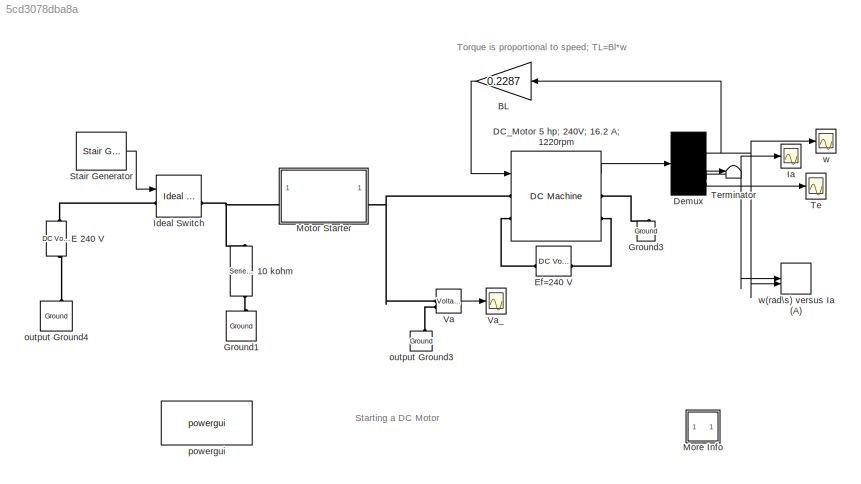
MODEL slx_5cd3078dba8a
KIND model
CONFIG AbsTol = auto
CONFIG EnableMultiTasking = off
CONFIG FixedStep = auto
CONFIG MaxStep = auto
CONFIG MinStep = auto
CONFIG RelTol = 1e-4
CONFIG SampleTimeConstraint = Unconstrained
CONFIG SolverName = ode23tb
CONFIG StartTime = 0.0
CONFIG StopTime = 10
BLOCK [Reference] 10 kohm  REF=spsSeriesRLCBranchLib/Series RLC Branch
  AttributesFormatString = \n
  NameLocation = left
  SourceBlock = spsSeriesRLCBranchLib/Series RLC Branch
  SourceType = Series RLC Branch
BLOCK [Gain] BL
  Gain = 0.2287
  NameLocation = top
  OutDataTypeStr = Inherit: Same as input
  ParamDataTypeStr = Inherit: Same as input
  SaturateOnIntegerOverflow = on
BLOCK [Reference] DC_Motor 5 hp;  240V;  16.2 A;  1220rpm  REF=spsDCMachineLib/DC Machine
  AttributesFormatString = \n
  NameLocation = top
  SourceBlock = spsDCMachineLib/DC Machine
  SourceType = DC machine
BLOCK [Demux] Demux
  DisplayOption = none
BLOCK [Reference] E 240 V  REF=spsDCVoltageSourceLib/DC Voltage Source
  AttributesFormatString = \n
  Description = source block
  NameLocation = right
  SourceBlock = spsDCVoltageSourceLib/DC Voltage Source
  SourceType = DC Voltage Source
BLOCK [Reference] Ef=240 V  REF=spsDCVoltageSourceLib/DC Voltage Source
  AttributesFormatString = \n
  Description = source block
  SourceBlock = spsDCVoltageSourceLib/DC Voltage Source
  SourceType = DC Voltage Source
BLOCK [Reference] Ground1  REF=spsGroundLib/Ground
  AttributesFormatString = \n
  NameLocation = right
  SourceBlock = spsGroundLib/Ground
  SourceType = Ground
BLOCK [Reference] Ground3  REF=spsGroundLib/Ground
  AttributesFormatString = \n
  NameLocation = right
  SourceBlock = spsGroundLib/Ground
  SourceType = Ground
BLOCK [Scope] Ia
  Floating = off
  NumInputPorts = 1
  ScopeSpecificationString = C++SS(StrPVP('Location','[277, 529, 503, 735]'),StrPVP('Open','off'),StrPVP('TickLabels','on'),StrPVP('ZoomMode','xonly'),MxPVP('AxesTitles',54,'struct(''axes1'',''%<SignalLabel>'')'),StrPVP('ShowLegends','off'),StrPVP('TimeRange','10              '),StrPVP('YMin','0'),StrPVP('YMax','40'),StrPVP('SaveToWorkspace','on'),StrPVP('SaveName','Ia'),StrPVP('LimitDataPoints','off'),StrPVP('BlockParamSampl...<+104ch>
BLOCK [Reference] Ideal Switch  REF=spsIdealSwitchLib/Ideal Switch
  AttributesFormatString = \n
  SourceBlock = spsIdealSwitchLib/Ideal Switch
  SourceType = Ideal Switch
BLOCK [SubSystem] More Info
  OpenFcn = showExample("simscapeelectricalsps/DCMotorStartingExample")
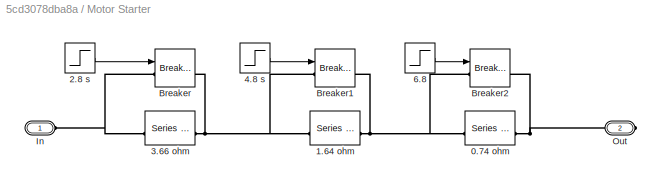
BLOCK [SubSystem] Motor Starter 
  NameLocation = top
BLOCK [Reference] Motor Starter /0.74 ohm  REF=spsSeriesRLCBranchLib/Series RLC Branch
  AttributesFormatString = \n
  SourceBlock = spsSeriesRLCBranchLib/Series RLC Branch
  SourceType = Series RLC Branch
BLOCK [Reference] Motor Starter /1.64  ohm  REF=spsSeriesRLCBranchLib/Series RLC Branch
  AttributesFormatString = \n
  SourceBlock = spsSeriesRLCBranchLib/Series RLC Branch
  SourceType = Series RLC Branch
BLOCK [Step] Motor Starter /2.8 s
  SampleTime = 0
  Time = 2.8
BLOCK [Reference] Motor Starter /3.66 ohm  REF=spsSeriesRLCBranchLib/Series RLC Branch
  AttributesFormatString = \n
  SourceBlock = spsSeriesRLCBranchLib/Series RLC Branch
  SourceType = Series RLC Branch
BLOCK [Step] Motor Starter /4.8 s
  SampleTime = 0
  Time = 4.8
BLOCK [Step] Motor Starter /6.8
  SampleTime = 0
  Time = 6.8
BLOCK [Reference] Motor Starter /Breaker  REF=spsBreakerLib/Breaker
  AttributesFormatString = \n
  SourceBlock = spsBreakerLib/Breaker
  SourceType = Breaker
BLOCK [Reference] Motor Starter /Breaker1  REF=spsBreakerLib/Breaker
  AttributesFormatString = \n
  SourceBlock = spsBreakerLib/Breaker
  SourceType = Breaker
BLOCK [Reference] Motor Starter /Breaker2  REF=spsBreakerLib/Breaker
  AttributesFormatString = \n
  SourceBlock = spsBreakerLib/Breaker
  SourceType = Breaker
BLOCK [PMIOPort] Motor Starter /In
  Side = Left
BLOCK [PMIOPort] Motor Starter /Out
  Port = 2
  Side = Right
BLOCK [Reference] Stair Generator  REF=spsStairGeneratorLib/Stair
Generator
  SourceBlock = spsStairGeneratorLib/Stair\nGenerator
  SourceType = Stair Generator
BLOCK [Scope] Te
  Floating = off
  NumInputPorts = 1
  ScopeSpecificationString = C++SS(StrPVP('Location','[516, 528, 742, 735]'),StrPVP('Open','off'),StrPVP('TickLabels','on'),StrPVP('ZoomMode','xonly'),MxPVP('AxesTitles',54,'struct(''axes1'',''%<SignalLabel>'')'),StrPVP('ShowLegends','off'),StrPVP('TimeRange','10'),StrPVP('YMin','0'),StrPVP('YMax','100'),StrPVP('SaveToWorkspace','on'),StrPVP('SaveName','Tm'),StrPVP('LimitDataPoints','off'),StrPVP('BlockParamSampleTime','0'),S...<+91ch>
BLOCK [Terminator] Terminator
BLOCK [Reference] Va  REF=spsVoltageMeasurementLib/Voltage Measurement
  AttributesFormatString = \n
  SourceBlock = spsVoltageMeasurementLib/Voltage Measurement
  SourceType = Voltage Measurement
  Tag = PoWeRsYsTeMmEaSuReMeNt
BLOCK [Scope] Va_
  Floating = off
  NumInputPorts = 1
  ScopeSpecificationString = C++SS(StrPVP('Location','[753, 527, 981, 729]'),StrPVP('Open','off'),StrPVP('TickLabels','on'),StrPVP('ZoomMode','xonly'),MxPVP('AxesTitles',54,'struct(''axes1'',''%<SignalLabel>'')'),StrPVP('ShowLegends','off'),StrPVP('TimeRange','10              '),StrPVP('YMin','0'),StrPVP('YMax','300'),StrPVP('SaveToWorkspace','on'),StrPVP('SaveName','U_DC_mot'),StrPVP('LimitDataPoints','off'),StrPVP('BlockPar...<+111ch>
BLOCK [Reference] output Ground3  REF=spsGroundLib/Ground
  AttributesFormatString = \n
  NameLocation = right
  SourceBlock = spsGroundLib/Ground
  SourceType = Ground
BLOCK [Reference] output Ground4  REF=spsGroundLib/Ground
  AttributesFormatString = \n
  NameLocation = right
  SourceBlock = spsGroundLib/Ground
  SourceType = Ground
BLOCK [Reference] powergui  REF=spspowerguiLib/powergui
  Priority = 2
  SourceBlock = spspowerguiLib/powergui
  SourceType = PSB option menu block
BLOCK [Scope] w
  Floating = off
  NumInputPorts = 1
  ScopeSpecificationString = C++SS(StrPVP('Location','[37, 529, 263, 733]'),StrPVP('Open','off'),StrPVP('TickLabels','on'),MxPVP('AxesTitles',54,'struct(''axes1'',''%<SignalLabel>'')'),StrPVP('ShowLegends','off'),StrPVP('TimeRange','10              '),StrPVP('YMin','0'),StrPVP('YMax','150'),StrPVP('SaveToWorkspace','on'),StrPVP('SaveName','w'),StrPVP('LimitDataPoints','off'),StrPVP('BlockParamSampleTime','0'),StrPVP('DataForm...<+76ch>
BLOCK [Record] w(rad\s) versus Ia (A)
  CompatibilityTag = XY
  FileSettingsInternal = {"entries":[{"content":{"excelSettings":{"content":{},"type":"Streamout.ExcelSettings"}},"type":"Streamout.FileSettingStorage","uuid":""}],"packageUris":["http:\/\/schema.mathworks.com\/mf0\/streamout_blocks\/R2020a"],"version":"1.0"}
  Layout = [1 1]
  SignalsInternal = {"entries":[{"content":{"signals":[{"content":{"blockPath":[],"dimensions":[1],"domain":"","lineColor":"#a2142f","plots":[ 1 ],"port":1,"signalID":1,"signalName":"XY Graph:1"},"type":"RecordBlkView.Signal","uuid":""},{"content":{"blockPath":[],"dimensions":[1],"domain":"","lineColor":"#139fff","plots":[ 1 ],"port":2,"signalID":2,"signalName":"XY Graph:2"},"type":"RecordBlkView.Signal","uuid":""}]}...<+144ch>
  VisualizationBindings = {"xyplotplugin":{"info":[{"series":[{"bindingParametersList":[{"parameter":"X-Axis","signalID":1,"signalName":"XY Graph:1"},{"parameter":"Y-Axis","signalID":2,"signalName":"XY Graph:2"}],"seriesID":0}],"subplotID":1}]}}
  st = -1
ANNOTATION (root): Starting a DC Motor
ANNOTATION (root): Torque is proportional to speed; TL=Bl*w
LINE BL:1 -> DC_Motor 5 hp;  240V;  16.2 A;  1220rpm:1
LINE DC_Motor 5 hp;  240V;  16.2 A;  1220rpm:1 -> Demux:1
NET Demux:1 -> BL:1, w(rad\s) versus Ia (A):2, w:1
NET Demux:2 -> Ia:1, w(rad\s) versus Ia (A):1
LINE Demux:3 -> Terminator:1
LINE Demux:4 -> Te:1
LINE Motor Starter /2.8 s:1 -> Motor Starter /Breaker:1
LINE Motor Starter /4.8 s:1 -> Motor Starter /Breaker1:1
LINE Motor Starter /6.8:1 -> Motor Starter /Breaker2:1
LINE Stair Generator:1 -> Ideal Switch:1
LINE Va:1 -> Va_:1
PNET net1: 10 kohm:LConn1 -- Ideal Switch:RConn1 -- Motor Starter :LConn1
PLINE 10 kohm:RConn1 -- Ground1:LConn1
PNET net2: DC_Motor 5 hp;  240V;  16.2 A;  1220rpm:LConn1 -- Motor Starter :RConn1 -- Va:LConn1
PLINE DC_Motor 5 hp;  240V;  16.2 A;  1220rpm:LConn2 -- Ef=240 V:RConn1
PLINE DC_Motor 5 hp;  240V;  16.2 A;  1220rpm:RConn1 -- Ground3:LConn1
PLINE DC_Motor 5 hp;  240V;  16.2 A;  1220rpm:RConn2 -- Ef=240 V:LConn1
PLINE E 240 V:LConn1 -- output Ground4:LConn1
PLINE E 240 V:RConn1 -- Ideal Switch:LConn1
PNET net3: Motor Starter /0.74 ohm:LConn1 -- Motor Starter /1.64  ohm:RConn1 -- Motor Starter /Breaker1:RConn1 -- Motor Starter /Breaker2:LConn1
PNET net4: Motor Starter /0.74 ohm:RConn1 -- Motor Starter /Breaker2:RConn1 -- Motor Starter /Out:RConn1
PNET net5: Motor Starter /1.64  ohm:LConn1 -- Motor Starter /3.66 ohm:RConn1 -- Motor Starter /Breaker1:LConn1 -- Motor Starter /Breaker:RConn1
PNET net6: Motor Starter /3.66 ohm:LConn1 -- Motor Starter /Breaker:LConn1 -- Motor Starter /In:RConn1
PLINE Va:LConn2 -- output Ground3:LConn1
note: NET lines group one-source signal fan-out (src -> all destinations, sorted); 1:1 wires keep LINE; PNET lines group multi-terminal physical nets as a canonical sorted terminal list (undirected conserving connections); 2-terminal nets keep the pairwise PLINE form
